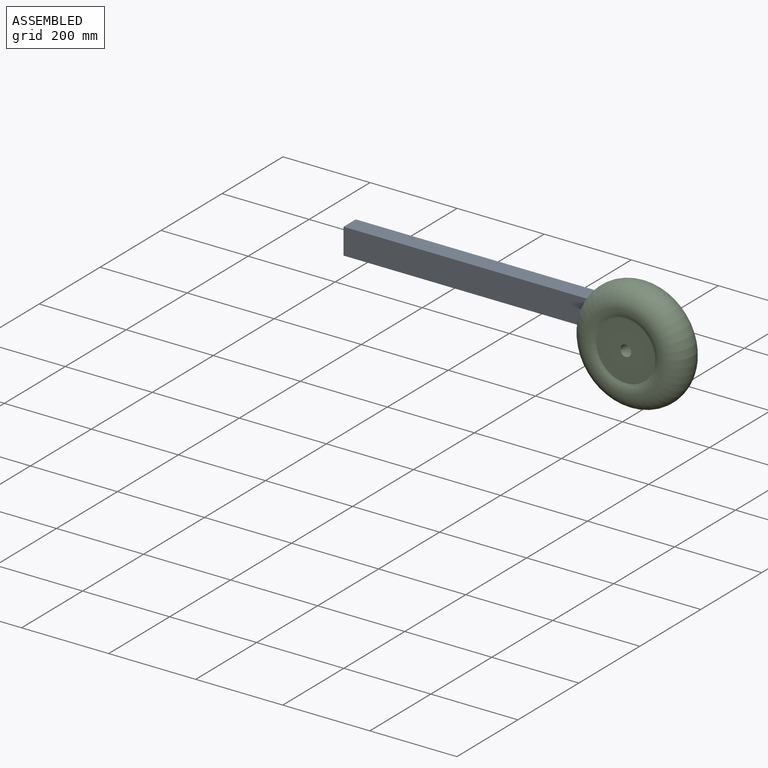
[diagram: assembled view]
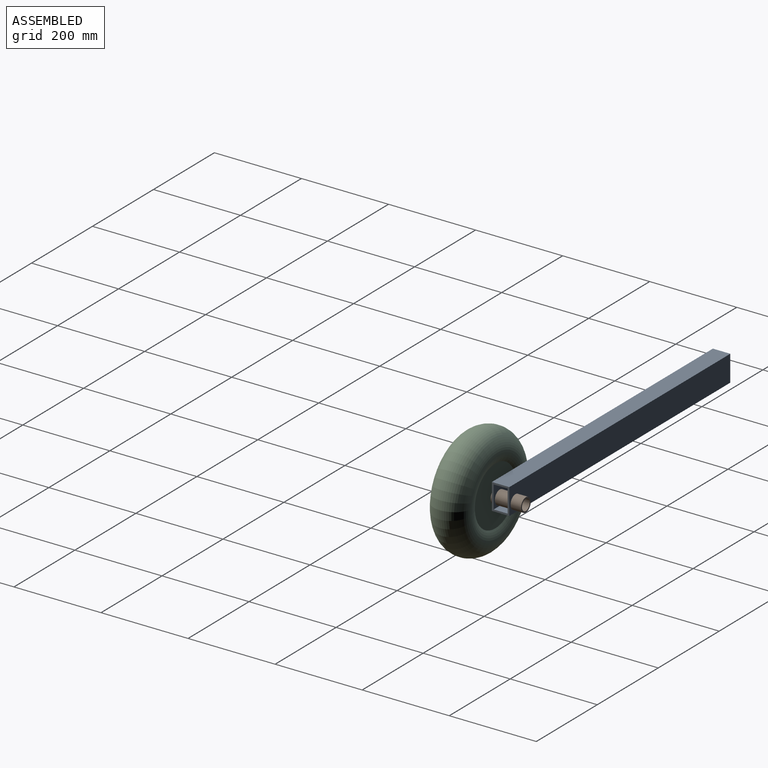
[diagram: assembled view, second angle]
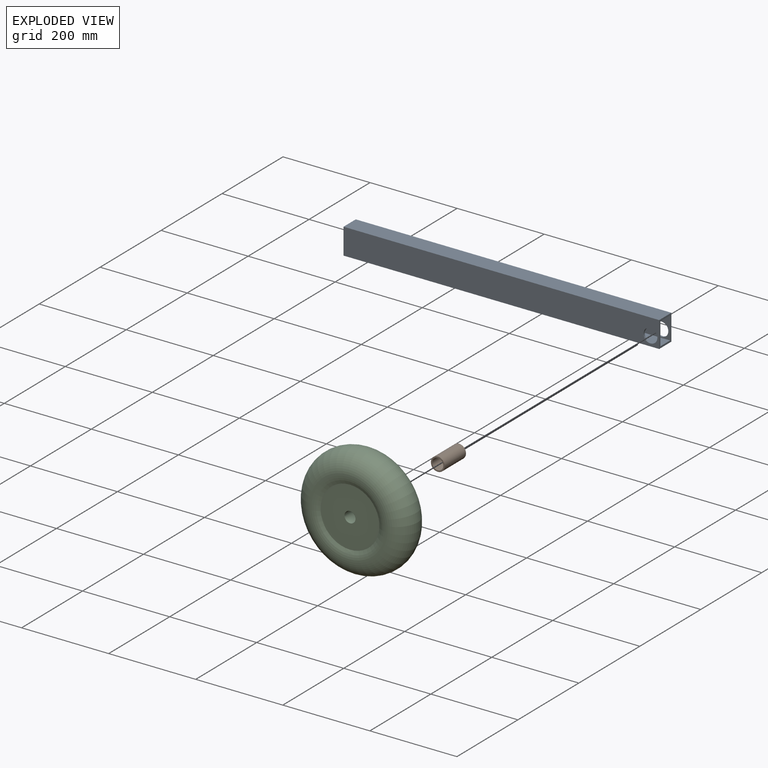
[diagram: exploded view]
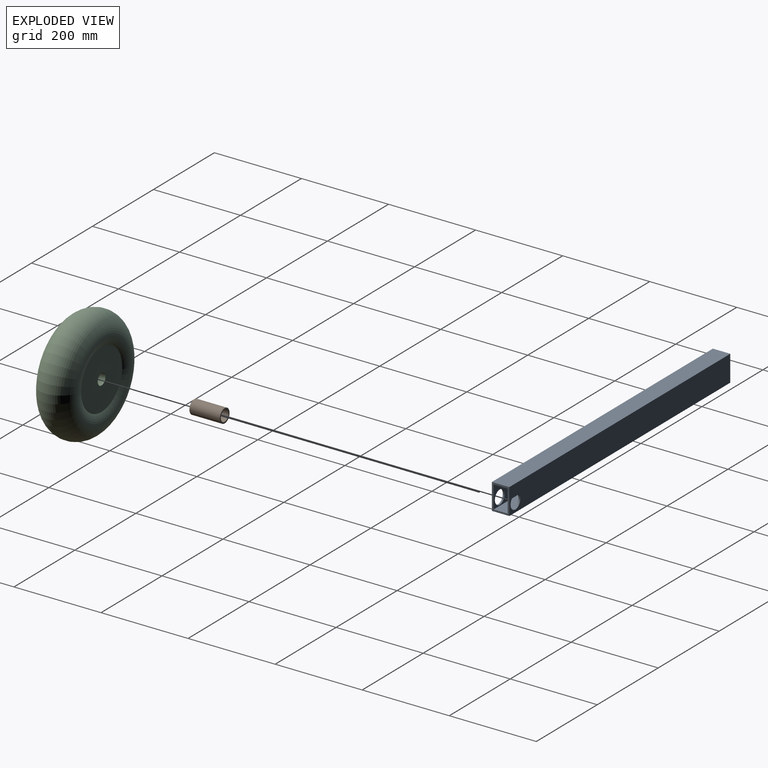
[diagram: exploded view, second angle]
ASSEMBLY  parts=3 mates=2
PART A: 12 faces, bbox 725x40x60 mm
  f0: plane 725x40mm, normal (0,0,-1), area 29000mm2, adj f1,f7,f8,f9
  f1: plane 725x60mm, normal (0,1,0), area 42705.8mm2, adj f0,f2,f8,f9,f11
  f2: plane 725x40mm, normal (0,0,1), area 29000mm2, adj f1,f7,f8,f9
  f3: plane 725x52mm, normal (0,-1,0), area 36905.8mm2, adj f4,f6,f8,f9,f11
  f4: plane 725x32mm, normal (0,0,1), area 23200mm2, adj f3,f5,f8,f9
  f5: plane 725x52mm, normal (0,1,0), area 36905.8mm2, adj f4,f6,f8,f9,f10
  f6: plane 725x32mm, normal (0,0,-1), area 23200mm2, adj f3,f5,f8,f9
  f7: plane 725x60mm, normal (0,-1,0), area 42705.8mm2, adj f0,f2,f8,f9,f10
  f8: plane 60x40mm, normal (-1,0,0), area 736mm2, adj f0,f1,f2,f3,f4,f5,f6,f7
  f9: plane 60x40mm, normal (1,0,0), area 736mm2, adj f0,f1,f2,f3,f4,f5,f6,f7
  f10: cylinder r=15.9mm len=31.8mm, axis (0,-1,0), area 399.6mm2, adj f5,f7
  f11: cylinder r=15.9mm len=31.8mm, axis (0,-1,0), area 399.6mm2, adj f1,f3
PART B: 4 faces, bbox 31.8x70x31.8 mm
  f0: cylinder r=12.7mm len=70mm, axis (0,-1,0), area 5585.8mm2, adj f2,f3
  f1: cylinder r=15.88mm len=70mm, axis (0,-1,0), area 6982.2mm2, adj f2,f3
  f2: plane 31.75x31.75mm, normal (0,1,0), area 285mm2, adj f0,f1
  f3: plane 31.75x31.75mm, normal (0,-1,0), area 285mm2, adj f0,f1
PART C: 4 faces, bbox 281.4x75x281.4 mm
  f0: plane 135x135mm, normal (0,-1,0), area 13807.2mm2, adj f1,f3
  f1: cylinder r=12.7mm len=75mm, axis (0,-1,0), area 5984.7mm2, adj f0,f2
  f2: plane 135x135mm, normal (0,1,0), area 13807.2mm2, adj f1,f3
  f3: torus R=87.5mm, axis (0,-1,0), area 116329.1mm2, adj f0,f2
PLACE A t=(20,-288.1,368.06)mm
PLACE B t=(20,-279.1,368.06)mm
PLACE C t=(0,-351.6,360.06)mm
MATE revolute B.f0 <-> C.f1  axis (0,-1,0) through (0,-314.1,360.06)mm
MATE fastened A.f10 <-> B.f0  axis (0,-1,0) through (0,-308.1,360.06)mm
